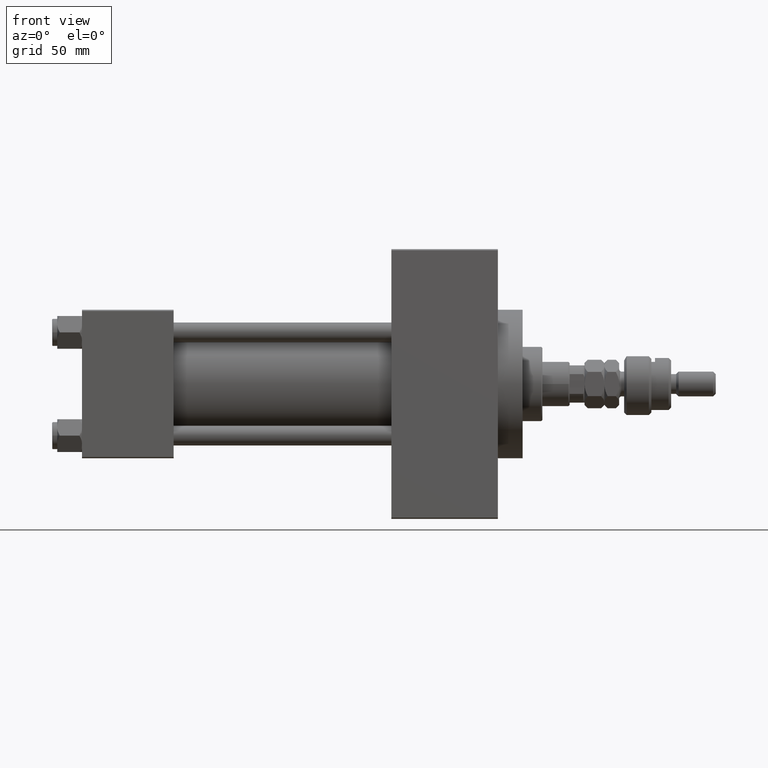
[diagram: clean part render]
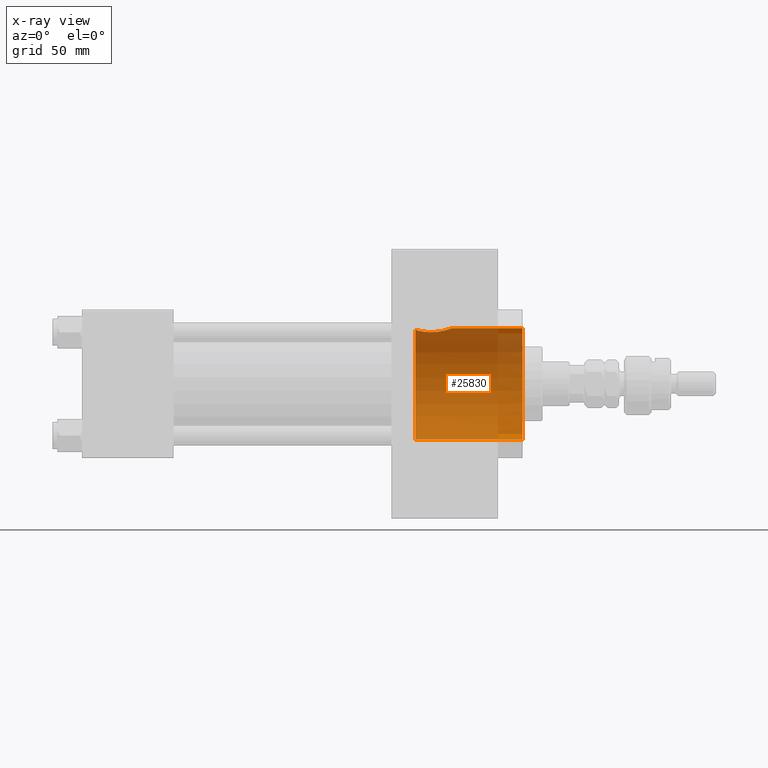
[diagram: x-ray — body ghosted, one internal face saturated and labeled with its STEP entity id]
A machine part, front view, then the same camera in x-ray: the body is ghosted and one INTERNAL B-rep face — a face not visible from any outside direction — is saturated and labeled: STEP entity #25830.
In plain terms, the highlighted cylindrical surface (partial cylindrical patch) has radius 22.5 mm, axis along (1, 0, 0).
Its self-contained STEP definition (entity closure, byte-faithful):
#1368 = ORIENTED_EDGE ( 'NONE', *, *, #31635, .T. ) ;
#2318 = CARTESIAN_POINT ( 'NONE',  ( 134.7400000000000091, 0.000000000000000000, 0.000000000000000000 ) ) ;
#3489 = DIRECTION ( 'NONE',  ( 1.000000000000000000, 0.000000000000000000, 0.000000000000000000 ) ) ;
#3736 = CARTESIAN_POINT ( 'NONE',  ( 147.6044044703110671, 5.093465402724843827, 21.91867937644422071 ) ) ;
#3908 = VERTEX_POINT ( 'NONE', #9499 ) ;
#3992 = CARTESIAN_POINT ( 'NONE',  ( 134.7400000000000091, 0.000000000000000000, 0.000000000000000000 ) ) ;
#4496 = CARTESIAN_POINT ( 'NONE',  ( 137.3806461157530805, 7.505553168791503360, 21.21148300119395458 ) ) ;
#5911 = LINE ( 'NONE', #10451, #17946 ) ;
#7333 = DIRECTION ( 'NONE',  ( 1.000000000000000000, 0.000000000000000000, 0.000000000000000000 ) ) ;
#7544 = CARTESIAN_POINT ( 'NONE',  ( 142.3216909083367909, 8.235391011504235692, 20.93889481549789622 ) ) ;
#8338 = CARTESIAN_POINT ( 'NONE',  ( 134.7400000000000091, 0.000000000000000000, -22.50000000000000355 ) ) ;
#8788 = CARTESIAN_POINT ( 'NONE',  ( 148.6630236205748758, 3.293226682608811906, 22.26100394775996705 ) ) ;
#9029 = CARTESIAN_POINT ( 'NONE',  ( 149.0718577897083890, 2.099993510347366588, 22.40540423522786639 ) ) ;
#9499 = CARTESIAN_POINT ( 'NONE',  ( 178.0000000000000000, 0.000000000000000000, -22.50000000000000355 ) ) ;
#10451 = CARTESIAN_POINT ( 'NONE',  ( 134.7400000000000091, 2.755455298081545172E-15, 22.50000000000000355 ) ) ;
#10829 = DIRECTION ( 'NONE',  ( 0.000000000000000000, 0.000000000000000000, -1.000000000000000000 ) ) ;
#11089 = CYLINDRICAL_SURFACE ( 'NONE', #42172, 22.50000000000000355 ) ;
#11588 = CARTESIAN_POINT ( 'NONE',  ( 135.9286092801891357, 6.661339213704124518, 21.49628500278264198 ) ) ;
#11826 = CARTESIAN_POINT ( 'NONE',  ( 136.8222632032723425, 7.209673137828870537, 21.31393839863305217 ) ) ;
#12281 = CARTESIAN_POINT ( 'NONE',  ( 149.3300000000000125, 2.755455287773006291E-15, 22.50000000000000355 ) ) ;
#12341 = CARTESIAN_POINT ( 'NONE',  ( 141.0516919710246668, 8.340554763309643960, 20.89702885938057619 ) ) ;
#13725 = EDGE_LOOP ( 'NONE', ( #39044, #24514, #35828, #22008, #1368 ) ) ;
#14923 = DIRECTION ( 'NONE',  ( 1.000000000000000000, -0.000000000000000000, -0.000000000000000000 ) ) ;
#15122 = CARTESIAN_POINT ( 'NONE',  ( 144.3390036589862291, 7.643039262353312324, 21.16267907401478254 ) ) ;
#16135 = CARTESIAN_POINT ( 'NONE',  ( 139.7869814485030702, 8.252076137422069024, 20.93215498966413435 ) ) ;
#16386 = CIRCLE ( 'NONE', #22834, 22.50000000000000355 ) ;
#16874 = CARTESIAN_POINT ( 'NONE',  ( 148.2906412269955183, 4.051397720758695087, 22.13557804199978918 ) ) ;
#17946 = VECTOR ( 'NONE', #48658, 1000.000000000000000 ) ;
#18525 = VERTEX_POINT ( 'NONE', #12281 ) ;
#19161 = CARTESIAN_POINT ( 'NONE',  ( 141.8956073634821564, 8.292491378959164550, 20.91614820275089315 ) ) ;
#19919 = CARTESIAN_POINT ( 'NONE',  ( 138.5452642440799309, 7.971261652067440195, 21.04094346462041543 ) ) ;
#20406 = VERTEX_POINT ( 'NONE', #23171 ) ;
#22008 = ORIENTED_EDGE ( 'NONE', *, *, #44531, .T. ) ;
#22545 = VERTEX_POINT ( 'NONE', #29942 ) ;
#22834 = AXIS2_PLACEMENT_3D ( 'NONE', #35340, #7333, #34170 ) ;
#22959 = CARTESIAN_POINT ( 'NONE',  ( 146.7669506482356496, 6.025506335620737453, 21.68046190096923453 ) ) ;
#23171 = CARTESIAN_POINT ( 'NONE',  ( 134.7400000000000091, 0.000000000000000000, -22.50000000000000355 ) ) ;
#23455 = CARTESIAN_POINT ( 'NONE',  ( 145.4551373660956983, 7.051020349556440081, 21.36774480484795191 ) ) ;
#24209 = CARTESIAN_POINT ( 'NONE',  ( 149.3299999999999841, 0.4231877007468795027, 22.50000000000000711 ) ) ;
#24330 = AXIS2_PLACEMENT_3D ( 'NONE', #3992, #3489, #10829 ) ;
#24455 = CARTESIAN_POINT ( 'NONE',  ( 149.3300000000000125, 2.755455287773006291E-15, 22.50000000000000355 ) ) ;
#24514 = ORIENTED_EDGE ( 'NONE', *, *, #26763, .F. ) ;
#24692 = CARTESIAN_POINT ( 'NONE',  ( 148.0784950564940345, 4.410947285040740518, 22.06616050573156684 ) ) ;
#25830 = ADVANCED_FACE ( 'NONE', ( #38677 ), #11089, .F. ) ;
#26763 = EDGE_CURVE ( 'NONE', #34728, #18525, #33483, .T. ) ;
#27249 = CARTESIAN_POINT ( 'NONE',  ( 138.1484526623329145, 7.837887213631844929, 21.09140609030399105 ) ) ;
#27261 = EDGE_CURVE ( 'NONE', #18525, #22545, #5911, .T. ) ;
#27764 = CARTESIAN_POINT ( 'NONE',  ( 143.1507344276368201, 8.058714127658479498, 21.00752502832084900 ) ) ;
#29942 = CARTESIAN_POINT ( 'NONE',  ( 178.0000000000000000, 2.755455298081545172E-15, 22.50000000000000355 ) ) ;
#30078 = DIRECTION ( 'NONE',  ( 0.000000000000000000, 0.000000000000000000, -1.000000000000000000 ) ) ;
#31070 = CARTESIAN_POINT ( 'NONE',  ( 134.7400000000000091, 5.495570943951124221, 21.81854028114622324 ) ) ;
#31571 = CARTESIAN_POINT ( 'NONE',  ( 140.6299664090159069, 8.332541612595159464, 20.90025414590699171 ) ) ;
#31635 = EDGE_CURVE ( 'NONE', #3908, #22545, #16386, .T. ) ;
#32564 = CARTESIAN_POINT ( 'NONE',  ( 149.1676325783013226, 1.690665256436936881, 22.44031409000265498 ) ) ;
#32801 = CARTESIAN_POINT ( 'NONE',  ( 148.8200576936606296, 2.900268709722562122, 22.31592599689449941 ) ) ;
#33483 = B_SPLINE_CURVE_WITH_KNOTS ( 'NONE', 3,
 ( #31070, #46487, #11588, #11826, #49792, #4496, #45999, #27249, #19919, #42704, #16135, #31571, #12341, #19161, #7544, #27764, #38166, #15122, #34617, #23455, #34366, #50049, #22959, #38403, #3736, #24692, #16874, #8788, #32801, #9029, #32564, #44180, #24209, #24455 ),
 .UNSPECIFIED., .F., .F.,
 ( 4, 2, 2, 2, 2, 2, 2, 2, 2, 2, 2, 2, 2, 2, 2, 2, 4 ),
 ( 0.000000000000000000, 0.002532697760304288264, 0.003165872200380343091, 0.003799046640456398786, 0.005065395520608584334, 0.006331744400760769449, 0.007598093280912955431, 0.008864442161065142281, 0.01013079104121732826, 0.01139713992136951598, 0.01266348880152170196, 0.01392983768167388968, 0.01519618656182607393, 0.01646253544197826338, 0.01772888432213045110, 0.01899523320228263534, 0.02026158208243482306 ),
 .UNSPECIFIED. ) ;
#33950 = CARTESIAN_POINT ( 'NONE',  ( 134.7400000000000091, 5.495570943951124221, 21.81854028114622324 ) ) ;
#34170 = DIRECTION ( 'NONE',  ( 0.000000000000000000, 0.000000000000000000, -1.000000000000000000 ) ) ;
#34366 = CARTESIAN_POINT ( 'NONE',  ( 145.8013027033389335, 6.819764595693557752, 21.44323695491644344 ) ) ;
#34617 = CARTESIAN_POINT ( 'NONE',  ( 144.7236659699604218, 7.463206326023630766, 21.22729274660728294 ) ) ;
#34728 = VERTEX_POINT ( 'NONE', #33950 ) ;
#35163 = LINE ( 'NONE', #8338, #40318 ) ;
#35340 = CARTESIAN_POINT ( 'NONE',  ( 178.0000000000000000, 0.000000000000000000, 0.000000000000000000 ) ) ;
#35828 = ORIENTED_EDGE ( 'NONE', *, *, #48806, .F. ) ;
#38166 = CARTESIAN_POINT ( 'NONE',  ( 143.5539892842376730, 7.939907640306461900, 21.05309719302650606 ) ) ;
#38403 = CARTESIAN_POINT ( 'NONE',  ( 147.3424573050792787, 5.416427024620343644, 21.84059232546010776 ) ) ;
#38677 = FACE_OUTER_BOUND ( 'NONE', #13725, .T. ) ;
#39044 = ORIENTED_EDGE ( 'NONE', *, *, #27261, .F. ) ;
#40318 = VECTOR ( 'NONE', #14923, 1000.000000000000000 ) ;
#42172 = AXIS2_PLACEMENT_3D ( 'NONE', #2318, #49807, #30078 ) ;
#42704 = CARTESIAN_POINT ( 'NONE',  ( 139.3628503782894086, 8.178415560073130308, 20.96129368941304705 ) ) ;
#44180 = CARTESIAN_POINT ( 'NONE',  ( 149.2970606556255575, 0.8528513471424520320, 22.48774533044545976 ) ) ;
#44531 = EDGE_CURVE ( 'NONE', #20406, #3908, #35163, .T. ) ;
#45999 = CARTESIAN_POINT ( 'NONE',  ( 137.5704381520594950, 7.594124707910250294, 21.17986642145410059 ) ) ;
#46161 = CIRCLE ( 'NONE', #24330, 22.50000000000000355 ) ;
#46487 = CARTESIAN_POINT ( 'NONE',  ( 135.2948812944180190, 6.127635735486544277, 21.65933820537500409 ) ) ;
#48658 = DIRECTION ( 'NONE',  ( 1.000000000000000000, -0.000000000000000000, -0.000000000000000000 ) ) ;
#48806 = EDGE_CURVE ( 'NONE', #20406, #34728, #46161, .T. ) ;
#49792 = CARTESIAN_POINT ( 'NONE',  ( 137.0068402018593190, 7.313530319584594430, 21.27845421415786831 ) ) ;
#49807 = DIRECTION ( 'NONE',  ( 1.000000000000000000, -0.000000000000000000, -0.000000000000000000 ) ) ;
#50049 = CARTESIAN_POINT ( 'NONE',  ( 146.4564057214795696, 6.307878676097809389, 21.59935801946436840 ) ) ;